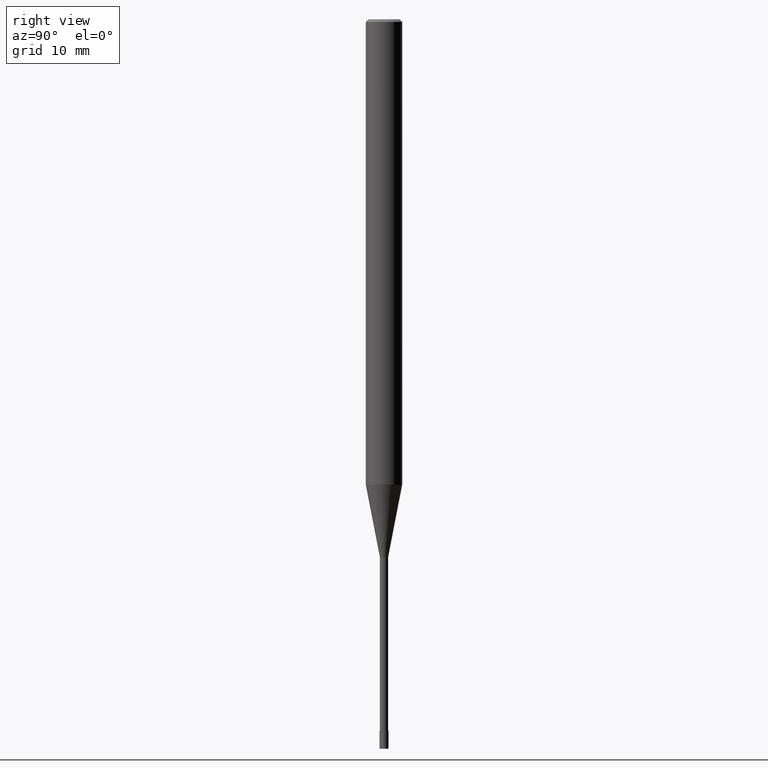
[diagram: clean part render]
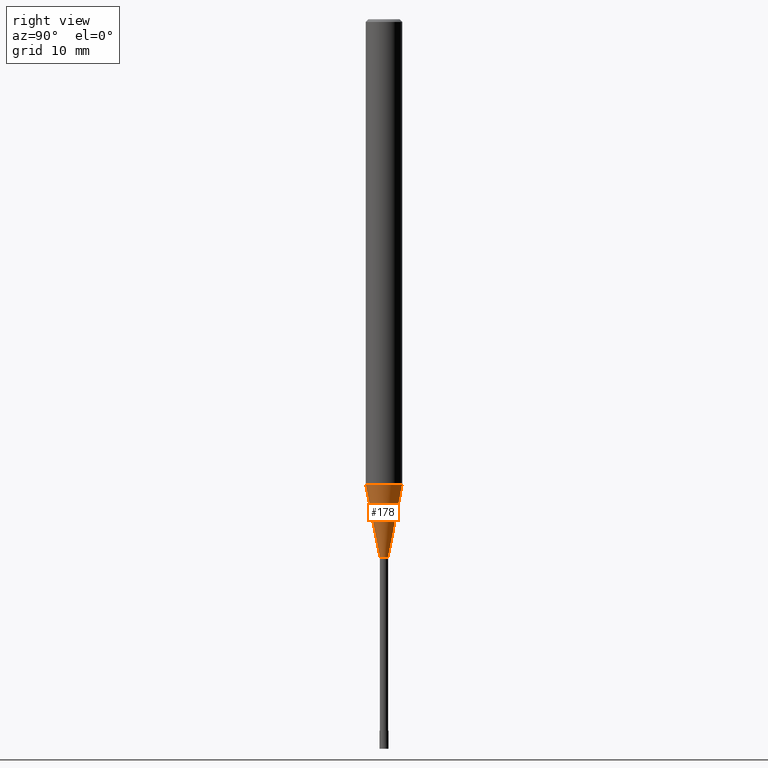
[diagram: same view with one face highlighted and labeled with its STEP entity id]
A machine part, right view. The second image highlights one B-rep face of the part: STEP entity #178.
In plain terms, the highlighted conical surface has half-angle 11 deg.
Its self-contained STEP definition (entity closure, byte-faithful):
#94=EDGE_CURVE('',#198,#162,#231,.T.);
#146=VERTEX_POINT('',#289);
#156=EDGE_CURVE('',#146,#198,#300,.T.);
#158=EDGE_CURVE('',#160,#146,#302,.T.);
#160=VERTEX_POINT('',#304);
#162=VERTEX_POINT('',#306);
#178=ADVANCED_FACE('',(#325),#326,.T.);
#198=VERTEX_POINT('',#347);
#204=EDGE_CURVE('',#160,#162,#355,.T.);
#231=LINE('',#377,#378);
#289=CARTESIAN_POINT('',(0.0,0.44995,-59.0));
#300=CIRCLE('',#466,0.44995);
#302=LINE('',#469,#470);
#304=CARTESIAN_POINT('',(0.0,1.99995,-51.026));
#306=CARTESIAN_POINT('',(2.44915147732706E-016,-1.99995,-51.026));
#325=FACE_OUTER_BOUND('',#497,.T.);
#326=CONICAL_SURFACE('',#498,1.22495,0.191987597119561);
#347=CARTESIAN_POINT('',(5.51011628902379E-017,-0.44995,-59.0));
#355=CIRCLE('',#534,1.99995);
#377=CARTESIAN_POINT('',(1.50008155311472E-016,-1.22495,-55.013));
#378=VECTOR('',#542,1.0);
#466=AXIS2_PLACEMENT_3D('',#626,#627,#628);
#469=CARTESIAN_POINT('',(-1.50008155311472E-016,1.22495,-55.013));
#470=VECTOR('',#629,1.0);
#497=EDGE_LOOP('',(#660,#661,#662,#663));
#498=AXIS2_PLACEMENT_3D('',#664,#665,#666);
#534=AXIS2_PLACEMENT_3D('',#695,#696,#697);
#542=DIRECTION('',(2.33667566290819E-017,-0.190810349433081,0.981626920244767));
#626=CARTESIAN_POINT('',(0.0,0.0,-59.0));
#627=DIRECTION('',(0.0,0.0,-1.0));
#628=DIRECTION('',(0.0,1.0,0.0));
#629=DIRECTION('',(2.33667566290819E-017,-0.190810349433081,-0.981626920244767));
#660=ORIENTED_EDGE('',*,*,#158,.F.);
#661=ORIENTED_EDGE('',*,*,#204,.T.);
#662=ORIENTED_EDGE('',*,*,#94,.F.);
#663=ORIENTED_EDGE('',*,*,#156,.F.);
#664=CARTESIAN_POINT('',(0.0,0.0,-55.013));
#665=DIRECTION('',(-0.0,-0.0,1.0));
#666=DIRECTION('',(0.0,1.0,0.0));
#695=CARTESIAN_POINT('',(0.0,0.0,-51.026));
#696=DIRECTION('',(0.0,0.0,-1.0));
#697=DIRECTION('',(0.0,1.0,0.0));